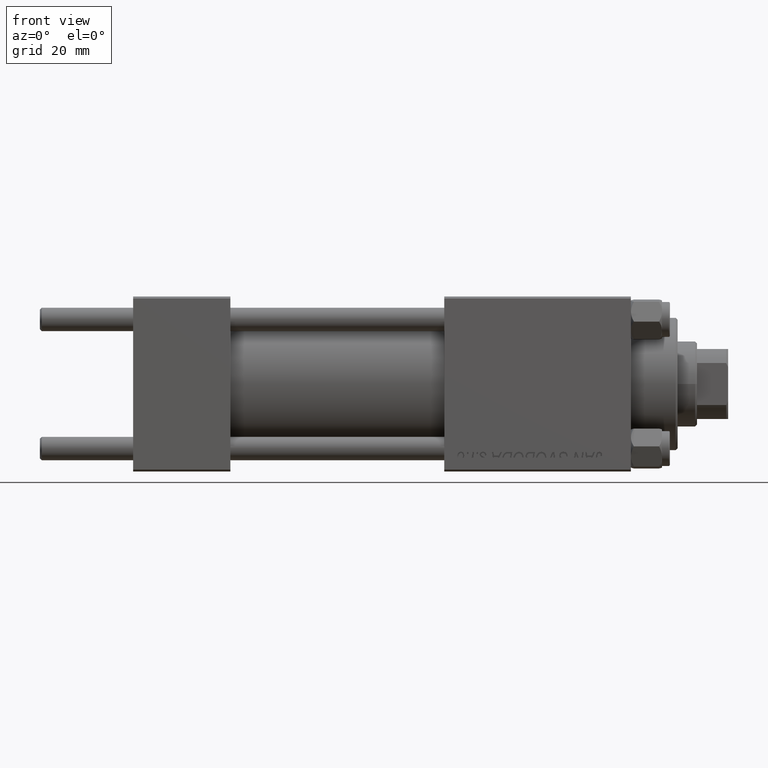
[diagram: clean part render]
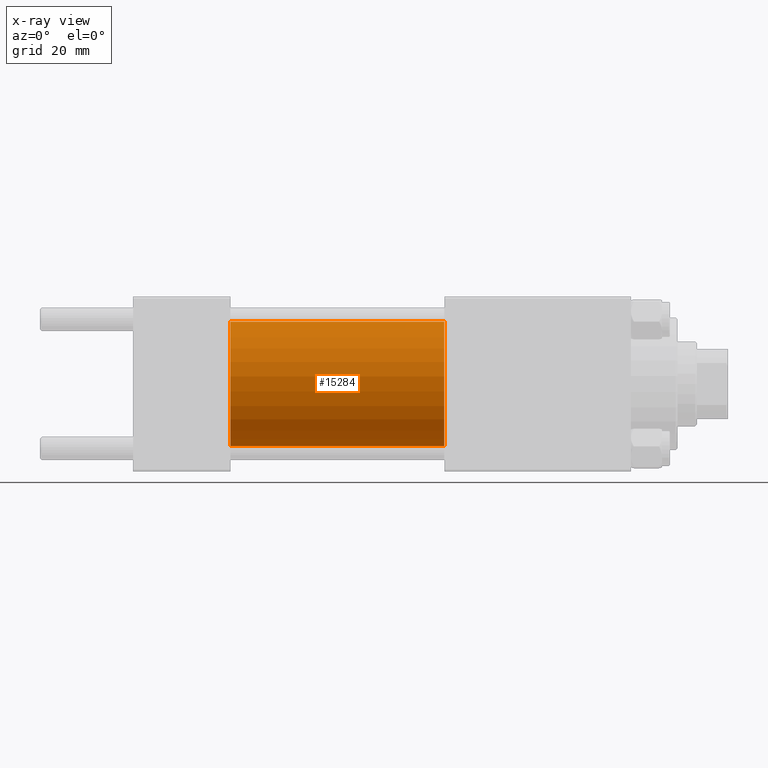
[diagram: x-ray — body ghosted, one internal face saturated and labeled with its STEP entity id]
A machine part, front view, then the same camera in x-ray: the body is ghosted and one INTERNAL B-rep face — a face not visible from any outside direction — is saturated and labeled: STEP entity #15284.
In plain terms, the highlighted cylindrical surface (partial cylindrical patch) has radius 16 mm, axis along (-1, -0, -0).
Its self-contained STEP definition (entity closure, byte-faithful):
#2450 = DIRECTION ( 'NONE',  ( 0.000000000000000000, 0.000000000000000000, -1.000000000000000000 ) ) ;
#2525 = VERTEX_POINT ( 'NONE', #26452 ) ;
#3063 = CARTESIAN_POINT ( 'NONE',  ( 80.00000000000000000, 1.959434878635765131E-15, -16.00000000000000000 ) ) ;
#7085 = EDGE_CURVE ( 'NONE', #44378, #28877, #13675, .T. ) ;
#8814 = DIRECTION ( 'NONE',  ( -1.000000000000000000, -0.000000000000000000, -0.000000000000000000 ) ) ;
#9121 = AXIS2_PLACEMENT_3D ( 'NONE', #34786, #31488, #42879 ) ;
#10713 = LINE ( 'NONE', #22607, #15698 ) ;
#13675 = CIRCLE ( 'NONE', #34679, 16.00000000000000000 ) ;
#13959 = CARTESIAN_POINT ( 'NONE',  ( 25.00000000000000000, 1.959434878635765131E-15, -16.00000000000000000 ) ) ;
#14500 = DIRECTION ( 'NONE',  ( -1.000000000000000000, -0.000000000000000000, -0.000000000000000000 ) ) ;
#15284 = ADVANCED_FACE ( 'NONE', ( #34896 ), #28067, .F. ) ;
#15660 = CARTESIAN_POINT ( 'NONE',  ( 80.00000000000000000, 0.000000000000000000, 0.000000000000000000 ) ) ;
#15698 = VECTOR ( 'NONE', #14500, 1000.000000000000000 ) ;
#16773 = EDGE_CURVE ( 'NONE', #2525, #48169, #35792, .T. ) ;
#17638 = DIRECTION ( 'NONE',  ( 1.000000000000000000, 0.000000000000000000, 0.000000000000000000 ) ) ;
#18016 = ORIENTED_EDGE ( 'NONE', *, *, #23934, .F. ) ;
#18142 = CARTESIAN_POINT ( 'NONE',  ( 80.00000000000000000, 0.000000000000000000, 0.000000000000000000 ) ) ;
#18522 = EDGE_CURVE ( 'NONE', #28877, #48169, #33703, .T. ) ;
#22607 = CARTESIAN_POINT ( 'NONE',  ( 80.00000000000000000, 0.000000000000000000, 16.00000000000000000 ) ) ;
#23934 = EDGE_CURVE ( 'NONE', #44378, #2525, #10713, .T. ) ;
#24261 = DIRECTION ( 'NONE',  ( 0.000000000000000000, 0.000000000000000000, 1.000000000000000000 ) ) ;
#24750 = CARTESIAN_POINT ( 'NONE',  ( 80.00000000000000000, 1.959434878635765131E-15, -16.00000000000000000 ) ) ;
#26452 = CARTESIAN_POINT ( 'NONE',  ( 25.00000000000000000, 0.000000000000000000, 16.00000000000000000 ) ) ;
#28014 = EDGE_LOOP ( 'NONE', ( #39783, #45576, #36967, #18016 ) ) ;
#28067 = CYLINDRICAL_SURFACE ( 'NONE', #28466, 16.00000000000000000 ) ;
#28466 = AXIS2_PLACEMENT_3D ( 'NONE', #15660, #8814, #24261 ) ;
#28877 = VERTEX_POINT ( 'NONE', #24750 ) ;
#31488 = DIRECTION ( 'NONE',  ( 1.000000000000000000, 0.000000000000000000, 0.000000000000000000 ) ) ;
#33703 = LINE ( 'NONE', #3063, #48790 ) ;
#34679 = AXIS2_PLACEMENT_3D ( 'NONE', #18142, #17638, #2450 ) ;
#34786 = CARTESIAN_POINT ( 'NONE',  ( 25.00000000000000000, 0.000000000000000000, 0.000000000000000000 ) ) ;
#34896 = FACE_OUTER_BOUND ( 'NONE', #28014, .T. ) ;
#35792 = CIRCLE ( 'NONE', #9121, 16.00000000000000000 ) ;
#36967 = ORIENTED_EDGE ( 'NONE', *, *, #16773, .F. ) ;
#39485 = CARTESIAN_POINT ( 'NONE',  ( 80.00000000000000000, 0.000000000000000000, 16.00000000000000000 ) ) ;
#39783 = ORIENTED_EDGE ( 'NONE', *, *, #7085, .T. ) ;
#40801 = DIRECTION ( 'NONE',  ( -1.000000000000000000, -0.000000000000000000, -0.000000000000000000 ) ) ;
#42879 = DIRECTION ( 'NONE',  ( 0.000000000000000000, 0.000000000000000000, -1.000000000000000000 ) ) ;
#44378 = VERTEX_POINT ( 'NONE', #39485 ) ;
#45576 = ORIENTED_EDGE ( 'NONE', *, *, #18522, .T. ) ;
#48169 = VERTEX_POINT ( 'NONE', #13959 ) ;
#48790 = VECTOR ( 'NONE', #40801, 1000.000000000000000 ) ;